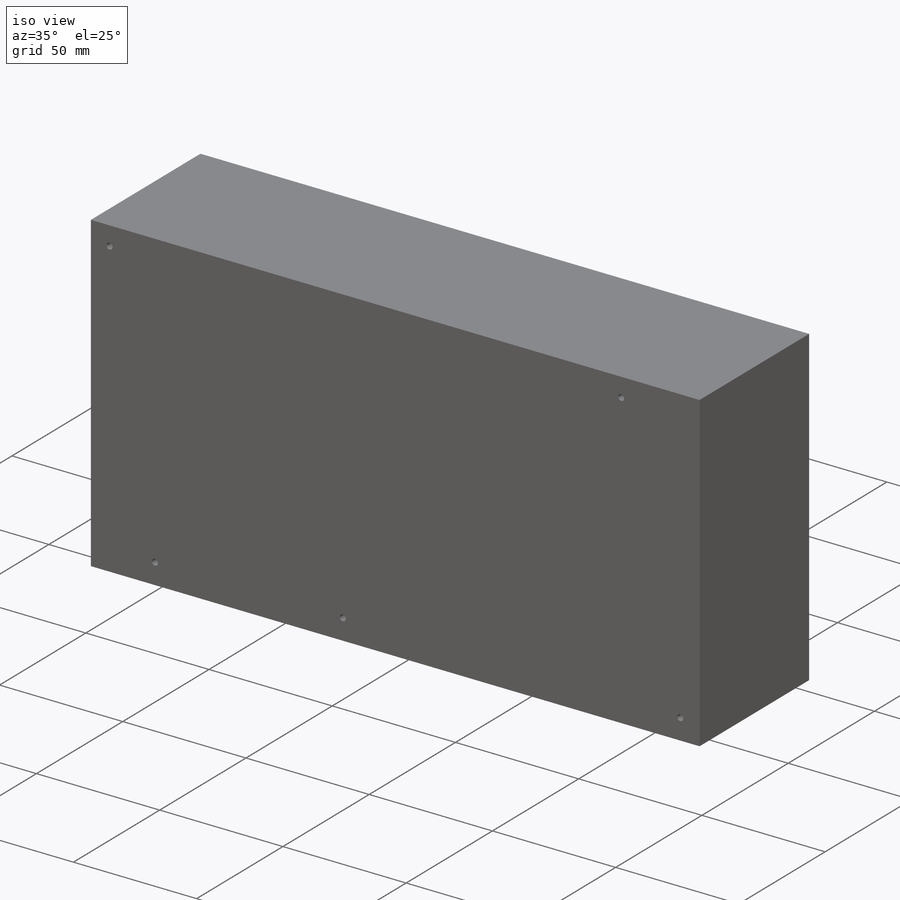
[diagram: iso view]
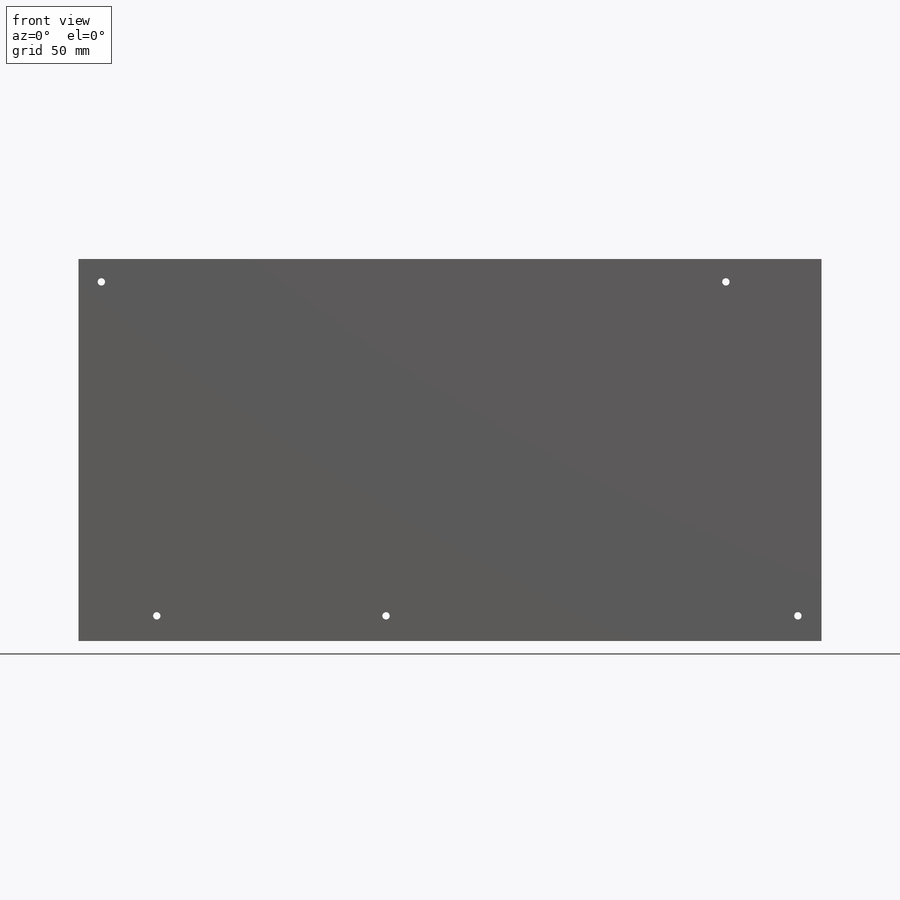
[diagram: front view]
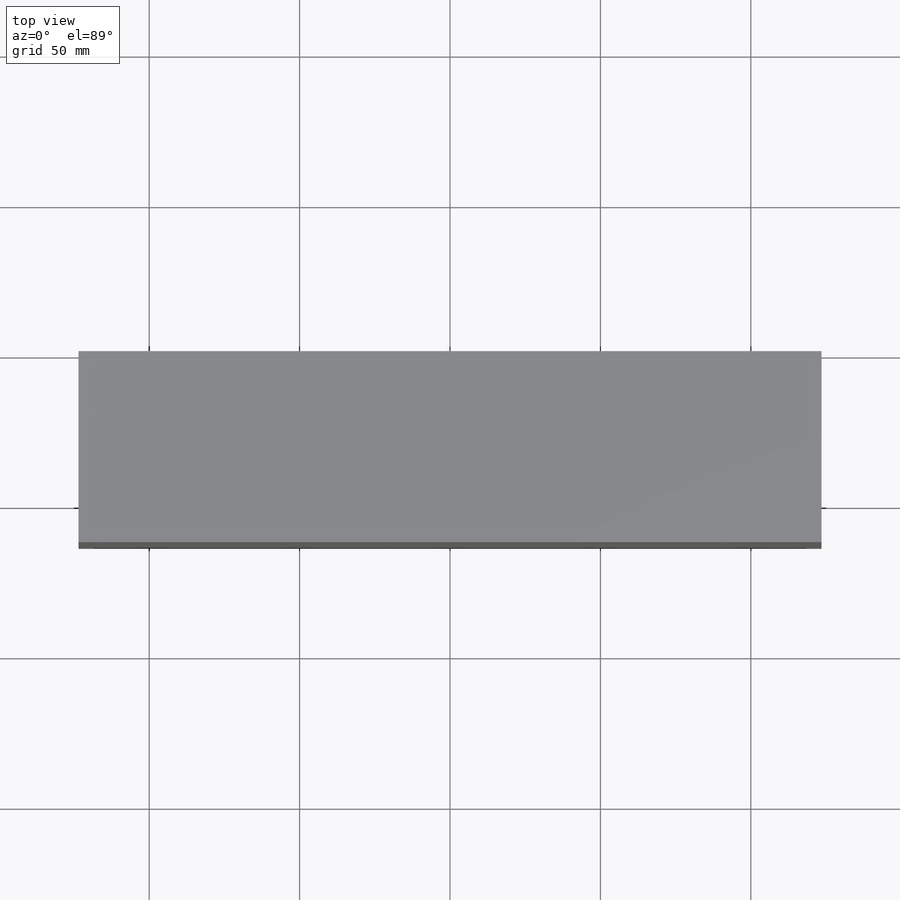
[diagram: top view]
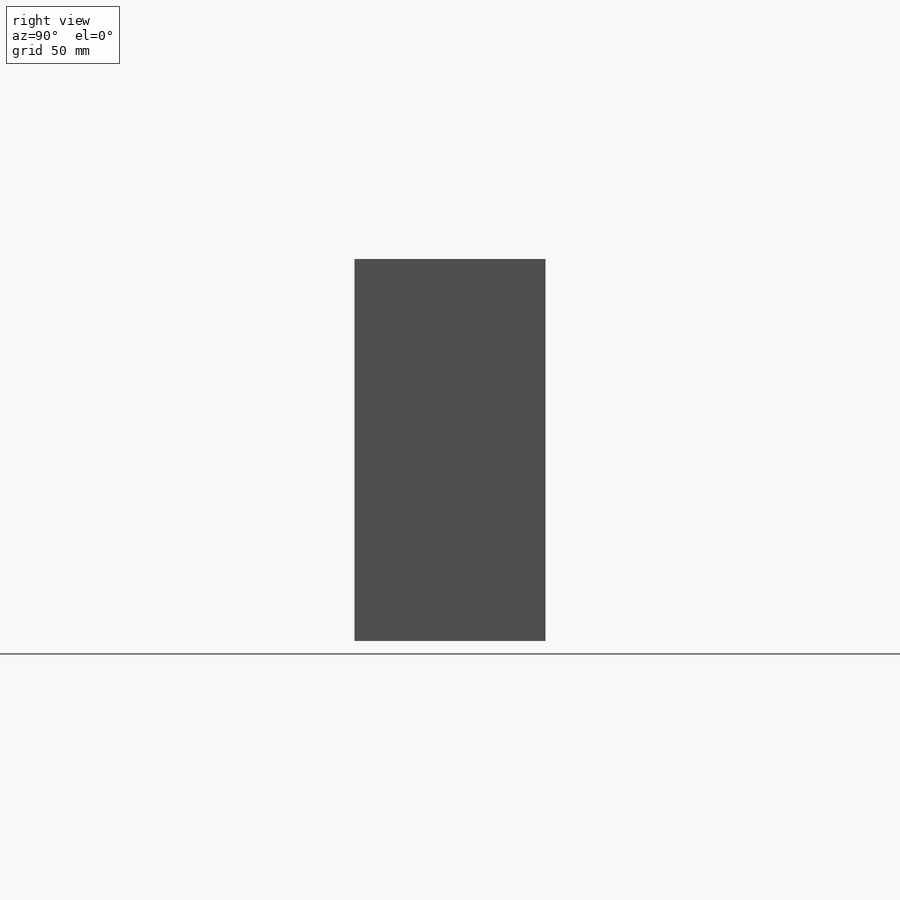
[diagram: right view]
SOLIDWORKS PART (.sldprt)
format: sldprt  version: not decoded by parser v0  size: 174,592 bytes
history: native  units: mm
features: sketch x3, material x1, extrude x1, hole x1 (+13 scaffold rows collapsed)
feature tree (19):
  scaffold x13  (default folders/planes/origin — collapsed)
  material  "Material <not specified>"
  sketch  "Sketch1"  dims[D1=247.0mm D2=127.0mm]
  extrude  "Boss-Extrude1"  Depth=63.5mm
  hole  "#41 (0.096) Diameter Hole1"  Diameter=2.4384mm Depth=63.5mm
  sketch  "Sketch3"  dims[D1=207.5815mm D2=7.62mm D3=7.62mm D4=8.382mm D5=26.035mm D6=76.2mm D7=136.906mm]
  sketch  "Sketch2"  dims[hole-wizard template sketch: 60 standard entries collapsed; hole parameters kept: c18.Thru Hole Depth=63.5mm]
decode coverage: 5 of 5 modeling features carry decoded parameters
note: ~ marks probable driven/reference dimensions
note: suppression state not decoded; provenance and decode notes live in map.json
